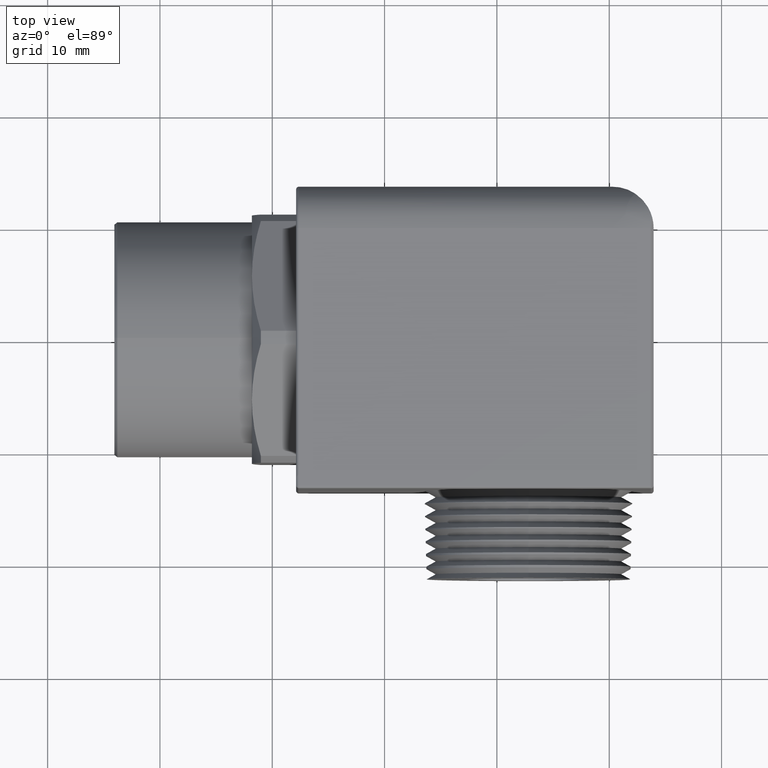
[diagram: clean part render]
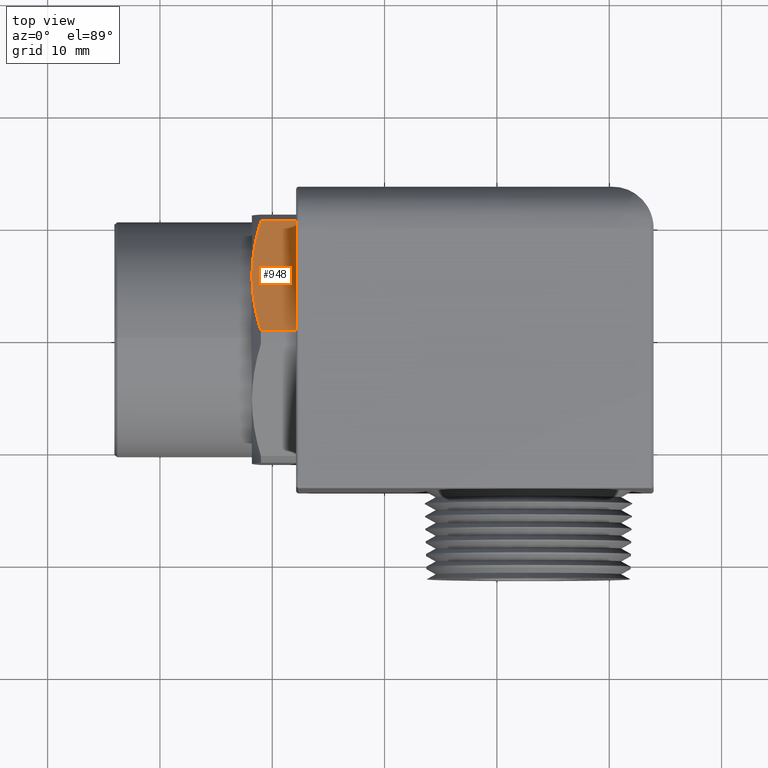
[diagram: same view with one face highlighted and labeled with its STEP entity id]
A machine part, top view. The second image highlights one B-rep face of the part: STEP entity #948.
In plain terms, the highlighted planar face has unit normal (0, -0.5, -0.866).
Its self-contained STEP definition (entity closure, byte-faithful):
#659 = VERTEX_POINT ( 'NONE', #2407 ) ;
#665 = VERTEX_POINT ( 'NONE', #2459 ) ;
#667 = EDGE_CURVE ( 'NONE', #665, #659, #2457, .T. ) ;
#800 = EDGE_CURVE ( 'NONE', #880, #665, #2753, .T. ) ;
#813 = VERTEX_POINT ( 'NONE', #2787 ) ;
#816 = EDGE_CURVE ( 'NONE', #817, #813, #2785, .T. ) ;
#817 = VERTEX_POINT ( 'NONE', #2781 ) ;
#880 = VERTEX_POINT ( 'NONE', #2895 ) ;
#929 = ORIENTED_EDGE ( 'NONE', *, *, #930, .T. ) ;
#930 = EDGE_CURVE ( 'NONE', #880, #817, #2980, .T. ) ;
#931 = ORIENTED_EDGE ( 'NONE', *, *, #816, .T. ) ;
#932 = ORIENTED_EDGE ( 'NONE', *, *, #933, .F. ) ;
#933 = EDGE_CURVE ( 'NONE', #659, #813, #3028, .T. ) ;
#948 = ADVANCED_FACE ( 'NONE', ( #3051 ), #3050, .F. ) ;
#949 = EDGE_LOOP ( 'NONE', ( #950, #951, #929, #931, #932 ) ) ;
#950 = ORIENTED_EDGE ( 'NONE', *, *, #667, .F. ) ;
#951 = ORIENTED_EDGE ( 'NONE', *, *, #800, .F. ) ;
#2407 = CARTESIAN_POINT ( 'NONE',  ( -0.4649999999999998000, 0.2174999999999998900, 0.3767210506462309600 ) ) ;
#2448 = CARTESIAN_POINT ( 'NONE',  ( -0.4649999999999998000, 0.2174999999999998900, 0.3767210506462309600 ) ) ;
#2449 = CARTESIAN_POINT ( 'NONE',  ( -0.4649999999999996900, 0.1846173445750788900, 0.3957058606074787500 ) ) ;
#2450 = CARTESIAN_POINT ( 'NONE',  ( -0.4620906986159180100, 0.1520255270851417200, 0.4145227552086729900 ) ) ;
#2451 = CARTESIAN_POINT ( 'NONE',  ( -0.4512536221500379500, 0.08734358042638869200, 0.4518668945238131800 ) ) ;
#2452 = CARTESIAN_POINT ( 'NONE',  ( -0.4433519003087176800, 0.05525084675922066500, 0.4703956429455834500 ) ) ;
#2453 = CARTESIAN_POINT ( 'NONE',  ( -0.4336065791128140300, 0.02334241459899125100, 0.4888179848427109400 ) ) ;
#2457 = B_SPLINE_CURVE_WITH_KNOTS ( 'NONE', 3,
 ( #2453, #2452, #2451, #2450, #2449, #2448 ),
 .UNSPECIFIED., .F., .F.,
 ( 4, 2, 4 ),
 ( 2.364213171735355100E-007, 0.002874435643469357100, 0.005748634865621540500 ),
 .UNSPECIFIED. ) ;
#2459 = CARTESIAN_POINT ( 'NONE',  ( -0.4336065791128140300, 0.02334241459899125100, 0.4888179848427109400 ) ) ;
#2750 = DIRECTION ( 'NONE',  ( -1.000000000000000000, 0.0000000000000000000, 0.0000000000000000000 ) ) ;
#2751 = VECTOR ( 'NONE', #2750, 39.37007874015748100 ) ;
#2752 = CARTESIAN_POINT ( 'NONE',  ( 1.088003139414393600, 0.02334241459899125500, 0.4888179848427109400 ) ) ;
#2753 = LINE ( 'NONE', #2752, #2751 ) ;
#2781 = CARTESIAN_POINT ( 'NONE',  ( -0.3100000000000000000, 0.4116575854010086600, 0.2646241164497508100 ) ) ;
#2782 = DIRECTION ( 'NONE',  ( -1.000000000000000000, 0.0000000000000000000, 0.0000000000000000000 ) ) ;
#2783 = VECTOR ( 'NONE', #2782, 39.37007874015748100 ) ;
#2784 = CARTESIAN_POINT ( 'NONE',  ( 1.088003139414393600, 0.4116575854010086600, 0.2646241164497508100 ) ) ;
#2785 = LINE ( 'NONE', #2784, #2783 ) ;
#2787 = CARTESIAN_POINT ( 'NONE',  ( -0.4336065791128140300, 0.4116575854010086600, 0.2646241164497508100 ) ) ;
#2895 = CARTESIAN_POINT ( 'NONE',  ( -0.3100000000000000000, 0.02334241459899125500, 0.4888179848427110000 ) ) ;
#2979 = CARTESIAN_POINT ( 'NONE',  ( -0.3100000000000000000, 0.4116575854010086100, 0.2646241164497508700 ) ) ;
#2980 = LINE ( 'NONE', #2979, #3032 ) ;
#3018 = CARTESIAN_POINT ( 'NONE',  ( -0.4336065791128140300, 0.4116575854010086600, 0.2646241164497508100 ) ) ;
#3019 = CARTESIAN_POINT ( 'NONE',  ( -0.4433081616060069500, 0.3798923638543403300, 0.2829637756605880600 ) ) ;
#3020 = CARTESIAN_POINT ( 'NONE',  ( -0.4512080808241505900, 0.3478710930366965000, 0.3014512649869485700 ) ) ;
#3021 = CARTESIAN_POINT ( 'NONE',  ( -0.4593579631042679100, 0.2993133496953741500, 0.3294860911763016200 ) ) ;
#3022 = CARTESIAN_POINT ( 'NONE',  ( -0.4614574234392958000, 0.2830397245277994100, 0.3388816730474918900 ) ) ;
#3023 = CARTESIAN_POINT ( 'NONE',  ( -0.4642824310347604100, 0.2502972160409162600, 0.3577855691363375200 ) ) ;
#3024 = CARTESIAN_POINT ( 'NONE',  ( -0.4649999999999997500, 0.2338349528489241900, 0.3672900612217046600 ) ) ;
#3025 = CARTESIAN_POINT ( 'NONE',  ( -0.4649999999999998000, 0.2174999999999998900, 0.3767210506462309600 ) ) ;
#3028 = B_SPLINE_CURVE_WITH_KNOTS ( 'NONE', 3,
 ( #3025, #3024, #3023, #3022, #3021, #3020, #3019, #3018 ),
 .UNSPECIFIED., .F., .F.,
 ( 4, 2, 2, 4 ),
 ( 0.005748634865621540500, 0.007176436488257173900, 0.008604238110892807300, 0.01145984135616407200 ),
 .UNSPECIFIED. ) ;
#3031 = DIRECTION ( 'NONE',  ( 0.0000000000000000000, 0.8660254037844388200, -0.4999999999999997200 ) ) ;
#3032 = VECTOR ( 'NONE', #3031, 39.37007874015748100 ) ;
#3037 = DIRECTION ( 'NONE',  ( 0.0000000000000000000, 0.8660254037844388200, -0.4999999999999997200 ) ) ;
#3038 = DIRECTION ( 'NONE',  ( 0.0000000000000000000, -0.4999999999999997200, -0.8660254037844388200 ) ) ;
#3039 = CARTESIAN_POINT ( 'NONE',  ( 1.088003139414393600, 0.4116575854010086100, 0.2646241164497508700 ) ) ;
#3048 = AXIS2_PLACEMENT_3D ( 'NONE', #3039, #3038, #3037 ) ;
#3050 = PLANE ( 'NONE',  #3048 ) ;
#3051 = FACE_OUTER_BOUND ( 'NONE', #949, .T. ) ;